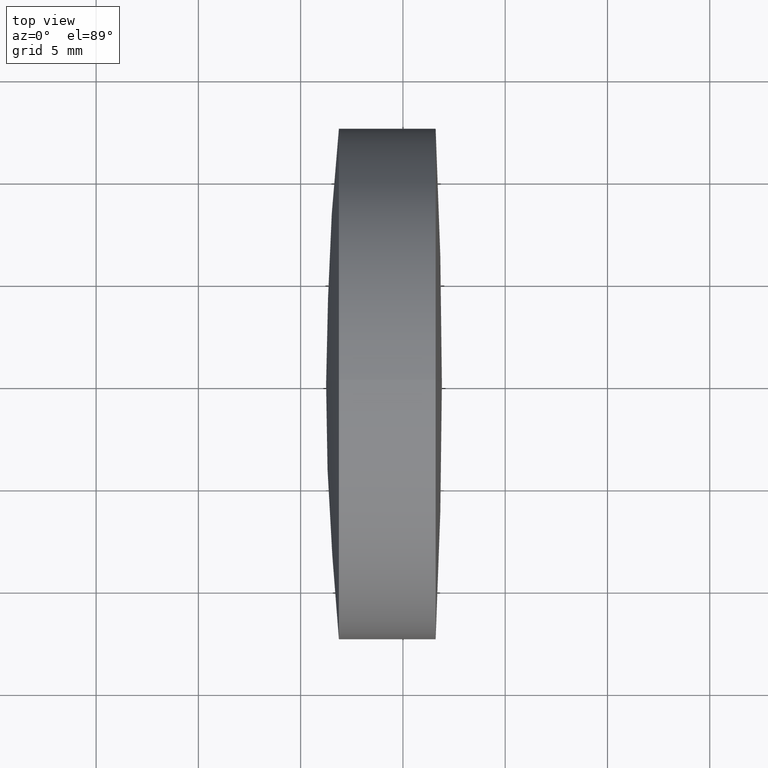
[diagram: clean part render]
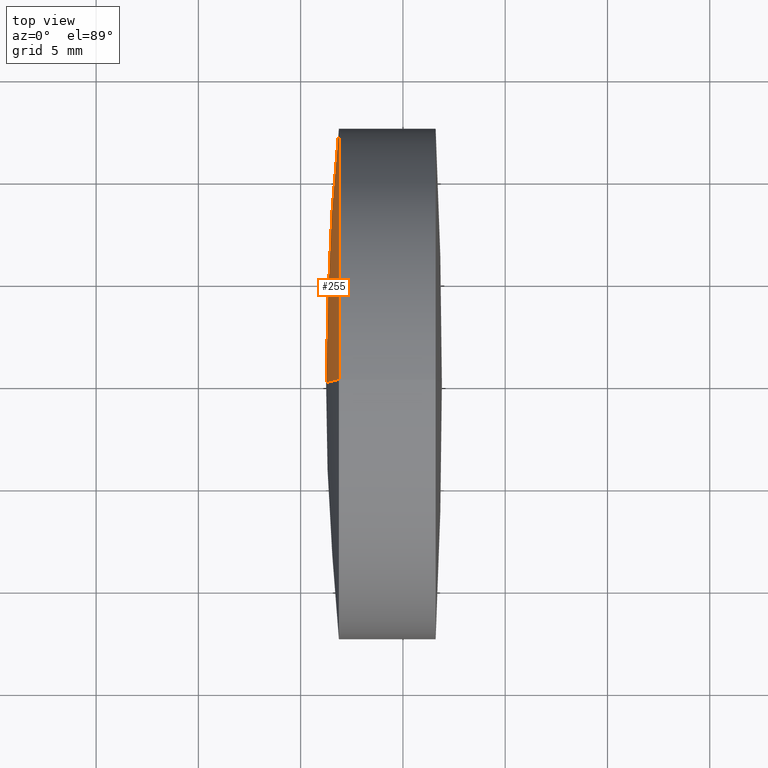
[diagram: same view with one face highlighted and labeled with its STEP entity id]
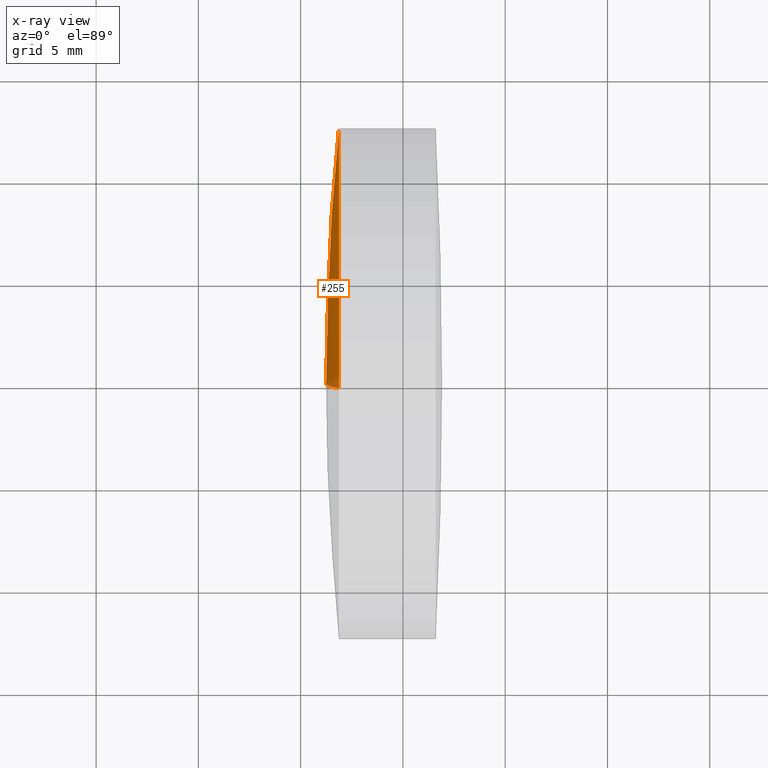
[diagram: x-ray of the same camera — body ghosted, the highlighted face saturated]
A machine part, top view. The second image highlights one B-rep face of the part: STEP entity #255.
The next image is the same camera in x-ray: the body ghosted, the highlighted face saturated — about 3% of this face is hidden behind the body in this view.
In plain terms, the highlighted spherical surface has radius 125.2 mm.
Its self-contained STEP definition (entity closure, byte-faithful):
#29 = DIRECTION ( 'NONE',  ( -0.0000000000000000000, -1.000000000000000000, -0.0000000000000000000 ) ) ;
#31 = CARTESIAN_POINT ( 'NONE',  ( 216.4446689735747200, 0.0000000000000000000, 3.752398377835878400E-016 ) ) ;
#45 = VERTEX_POINT ( 'NONE', #56 ) ;
#46 = DIRECTION ( 'NONE',  ( 0.0000000000000000000, 1.000000000000000000, -0.0000000000000000000 ) ) ;
#55 = CIRCLE ( 'NONE', #86, 12.50000000000000200 ) ;
#56 = CARTESIAN_POINT ( 'NONE',  ( 91.87023339387808100, -1.530808498934183400E-015, 12.49999999999993400 ) ) ;
#61 = CARTESIAN_POINT ( 'NONE',  ( 216.4446689735747200, 0.0000000000000000000, 3.752398377835878400E-016 ) ) ;
#75 = EDGE_CURVE ( 'NONE', #45, #88, #55, .T. ) ;
#78 = AXIS2_PLACEMENT_3D ( 'NONE', #31, #29, #160 ) ;
#86 = AXIS2_PLACEMENT_3D ( 'NONE', #90, #261, #323 ) ;
#88 = VERTEX_POINT ( 'NONE', #223 ) ;
#90 = CARTESIAN_POINT ( 'NONE',  ( 91.87023339387808100, 0.0000000000000000000, 0.0000000000000000000 ) ) ;
#105 = AXIS2_PLACEMENT_3D ( 'NONE', #258, #224, #343 ) ;
#110 = VERTEX_POINT ( 'NONE', #158 ) ;
#158 = CARTESIAN_POINT ( 'NONE',  ( 91.24466897357477500, 0.0000000000000000000, -7.291049124878839800E-015 ) ) ;
#160 = DIRECTION ( 'NONE',  ( 0.0000000000000000000, 0.0000000000000000000, -1.000000000000000000 ) ) ;
#165 = AXIS2_PLACEMENT_3D ( 'NONE', #61, #46, #304 ) ;
#178 = ORIENTED_EDGE ( 'NONE', *, *, #179, .F. ) ;
#179 = EDGE_CURVE ( 'NONE', #45, #110, #312, .T. ) ;
#182 = ORIENTED_EDGE ( 'NONE', *, *, #75, .T. ) ;
#190 = EDGE_LOOP ( 'NONE', ( #178, #182, #330 ) ) ;
#223 = CARTESIAN_POINT ( 'NONE',  ( 91.87023339387808100, 0.0000000000000000000, -12.49999999999993400 ) ) ;
#224 = DIRECTION ( 'NONE',  ( 0.0000000000000000000, -1.000000000000000000, -1.224646799147353200E-016 ) ) ;
#237 = FACE_OUTER_BOUND ( 'NONE', #190, .T. ) ;
#245 = SPHERICAL_SURFACE ( 'NONE', #78, 125.1999999999999500 ) ;
#255 = ADVANCED_FACE ( 'NONE', ( #237 ), #245, .T. ) ;
#258 = CARTESIAN_POINT ( 'NONE',  ( 216.4446689735747200, 0.0000000000000000000, 3.752398377835878400E-016 ) ) ;
#261 = DIRECTION ( 'NONE',  ( -1.000000000000000000, -0.0000000000000000000, -0.0000000000000000000 ) ) ;
#304 = DIRECTION ( 'NONE',  ( 0.0000000000000000000, 0.0000000000000000000, 1.000000000000000000 ) ) ;
#307 = CIRCLE ( 'NONE', #165, 125.1999999999999500 ) ;
#312 = CIRCLE ( 'NONE', #105, 125.1999999999999500 ) ;
#323 = DIRECTION ( 'NONE',  ( 0.0000000000000000000, 0.0000000000000000000, 1.000000000000000000 ) ) ;
#330 = ORIENTED_EDGE ( 'NONE', *, *, #334, .T. ) ;
#334 = EDGE_CURVE ( 'NONE', #88, #110, #307, .T. ) ;
#343 = DIRECTION ( 'NONE',  ( 0.0000000000000000000, 1.224646799147353200E-016, -1.000000000000000000 ) ) ;